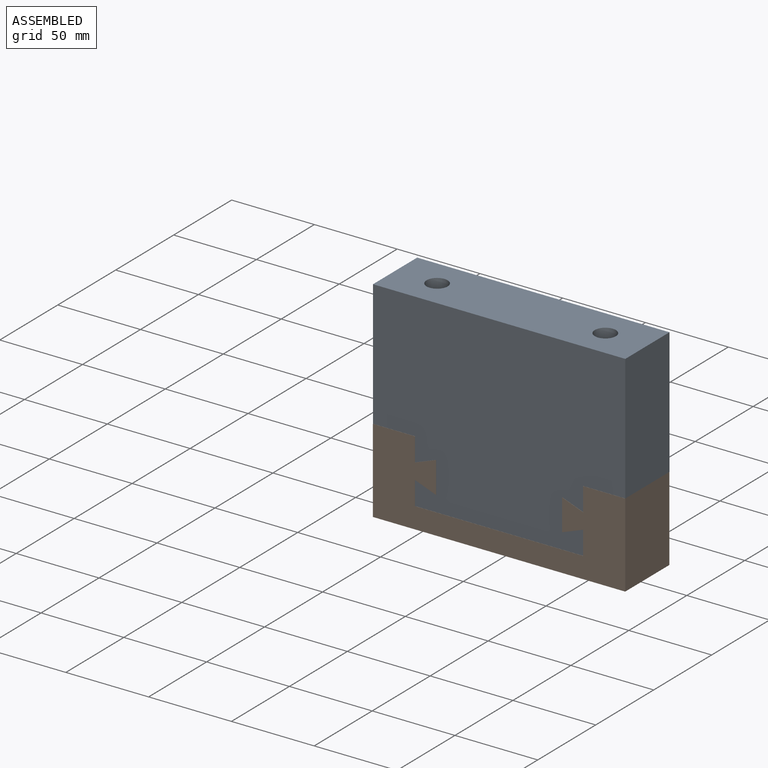
[diagram: assembled view]
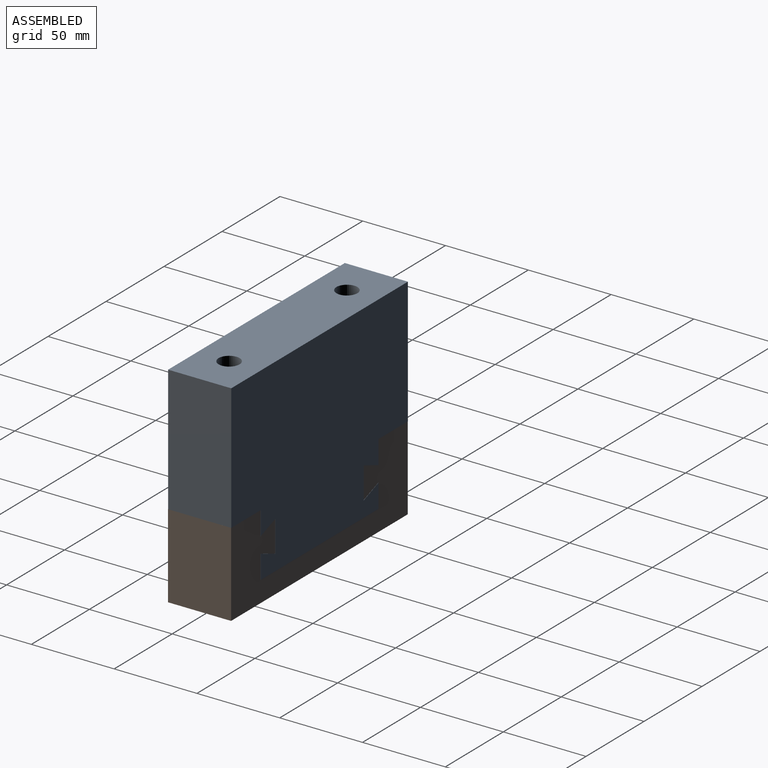
[diagram: assembled view, second angle]
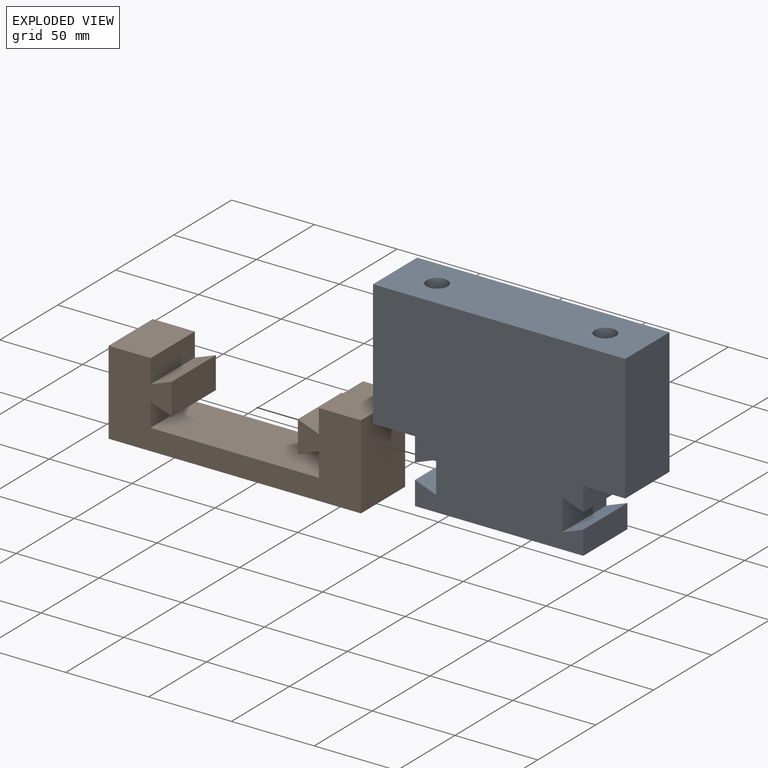
[diagram: exploded view]
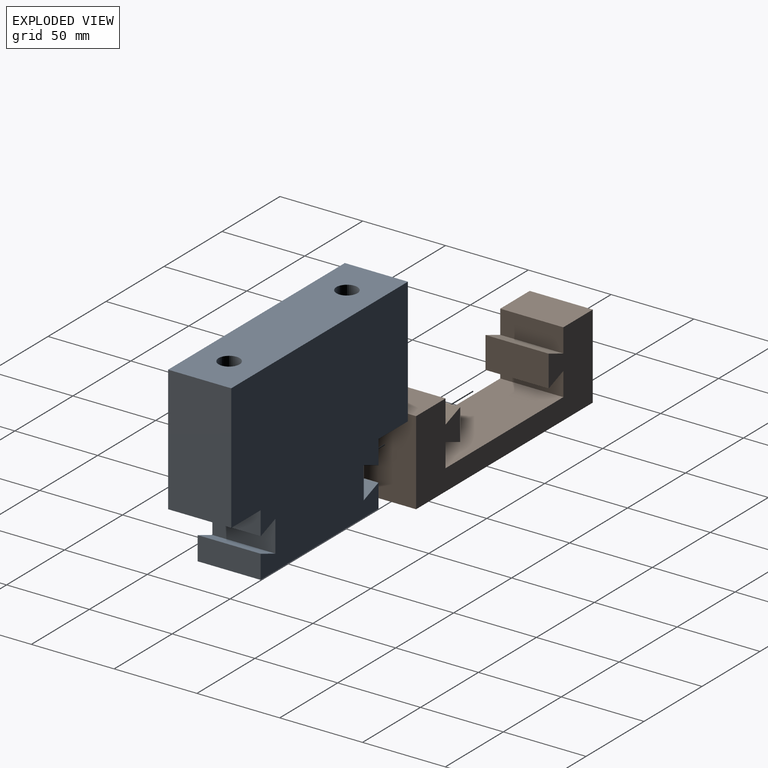
[diagram: exploded view, second angle]
ASSEMBLY  parts=2 mates=2
PART A: 22 faces, bbox 152.4x38.1x114.3 mm
  f0: plane 76.2x38.1mm, normal (-1,0,0), area 2903.2mm2, adj f2,f3,f4,f10
  f1: plane 76.2x38.1mm, normal (1,0,0), area 2903.2mm2, adj f2,f3,f4,f11
  f2: plane 152.4x114.3mm, normal (0,-1,0), area 15120.9mm2, adj f0,f1,f4,f9,f10,f11,f12,f13
  f3: plane 152.4x114.3mm, normal (0,1,0), area 15120.9mm2, adj f0,f1,f4,f9,f10,f11,f12,f13
  f4: plane 152.4x38.1mm, normal (0,0,1), area 5553.1mm2, adj f0,f1,f2,f3,f6,f8
  f5: cone r=0mm half-angle=59deg, axis (0,0,1), area 147.8mm2, adj f6
  f6: cylinder r=6.35mm len=28.58mm, axis (0,0,1), area 1140.1mm2, adj f4,f5
  f7: cone r=0mm half-angle=59deg, axis (0,0,1), area 147.8mm2, adj f8
  f8: cylinder r=6.35mm len=28.58mm, axis (0,0,1), area 1140.1mm2, adj f4,f7
  f9: plane 38.1x14.29mm, normal (-1,0,0), area 544.4mm2, adj f2,f3,f10,f21
  f10: plane 38.1x25.4mm, normal (0,0,-1), area 967.7mm2, adj f0,f2,f3,f9
  f11: plane 38.1x25.4mm, normal (0,0,-1), area 967.7mm2, adj f1,f2,f3,f12
  f12: plane 38.1x14.29mm, normal (1,0,0), area 544.4mm2, adj f2,f3,f11,f13
  f13: plane 38.1x12.7mm, normal (-0.35,0,-0.94), area 516.8mm2, adj f2,f3,f12,f14
  f14: plane 38.1x19.05mm, normal (1,0,0), area 725.8mm2, adj f2,f3,f13,f15
  f15: plane 38.1x12.7mm, normal (-0.35,0,0.94), area 516.8mm2, adj f2,f3,f14,f16
  f16: plane 38.1x14.29mm, normal (1,0,0), area 544.4mm2, adj f2,f3,f15,f17
  f17: plane 101.6x38.1mm, normal (0,0,-1), area 3871mm2, adj f2,f3,f16,f18
  f18: plane 38.1x14.29mm, normal (-1,0,0), area 544.4mm2, adj f2,f3,f17,f19
  f19: plane 38.1x12.7mm, normal (0.35,0,0.94), area 516.8mm2, adj f2,f3,f18,f20
  f20: plane 38.1x19.05mm, normal (-1,0,0), area 725.8mm2, adj f2,f3,f19,f21
  f21: plane 38.1x12.7mm, normal (0.35,0,-0.94), area 516.8mm2, adj f2,f3,f9,f20
PART B: 18 faces, bbox 152.4x38.1x50.8 mm
  f0: plane 38.1x12.7mm, normal (-0.35,0,0.94), area 516.8mm2, adj f1,f15,f16,f17
  f1: plane 38.1x14.29mm, normal (1,0,0), area 544.4mm2, adj f0,f2,f16,f17
  f2: plane 38.1x25.4mm, normal (0,0,1), area 967.7mm2, adj f1,f3,f16,f17
  f3: plane 50.8x38.1mm, normal (-1,0,0), area 1935.5mm2, adj f2,f4,f16,f17
  f4: plane 152.4x38.1mm, normal (0,0,-1), area 5806.4mm2, adj f3,f5,f16,f17
  f5: plane 50.8x38.1mm, normal (1,0,0), area 1935.5mm2, adj f4,f6,f16,f17
  f6: plane 38.1x25.4mm, normal (0,0,1), area 967.7mm2, adj f5,f7,f16,f17
  f7: plane 38.1x14.29mm, normal (-1,0,0), area 544.4mm2, adj f6,f8,f16,f17
  f8: plane 38.1x12.7mm, normal (0.35,0,0.94), area 516.8mm2, adj f7,f9,f16,f17
  f9: plane 38.1x19.05mm, normal (-1,0,0), area 725.8mm2, adj f8,f10,f16,f17
  f10: plane 38.1x12.7mm, normal (0.35,0,-0.94), area 516.8mm2, adj f9,f11,f16,f17
  f11: plane 38.1x14.29mm, normal (-1,0,0), area 544.4mm2, adj f10,f12,f16,f17
  f12: plane 101.6x38.1mm, normal (0,0,1), area 3871mm2, adj f11,f13,f16,f17
  f13: plane 38.1x14.29mm, normal (1,0,0), area 544.4mm2, adj f12,f14,f16,f17
  f14: plane 38.1x12.7mm, normal (-0.35,0,-0.94), area 516.8mm2, adj f13,f15,f16,f17
  f15: plane 38.1x19.05mm, normal (1,0,0), area 725.8mm2, adj f0,f14,f16,f17
  f16: plane 152.4x50.8mm, normal (0,-1,0), area 4233.9mm2, adj f0,f1,f2,f3,f4,f5,f6,f7
  f17: plane 152.4x50.8mm, normal (0,1,0), area 4233.9mm2, adj f0,f1,f2,f3,f4,f5,f6,f7
PLACE A at identity fixed
PLACE B t=(0,-0.1,-127)mm
MATE planar B.f15 <-> A.f20  axis (1,0,0) through (-38.1,-0.1,-95.25)mm
MATE planar B.f12 <-> A.f17  axis (0,0,1) through (0,-0.1,-114.3)mm
